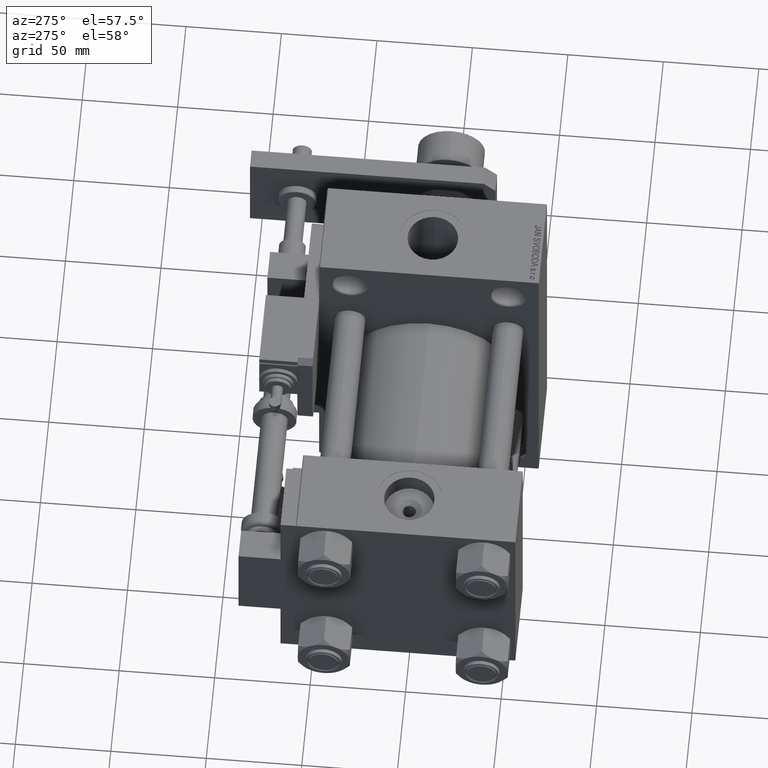
[diagram: clean part render]
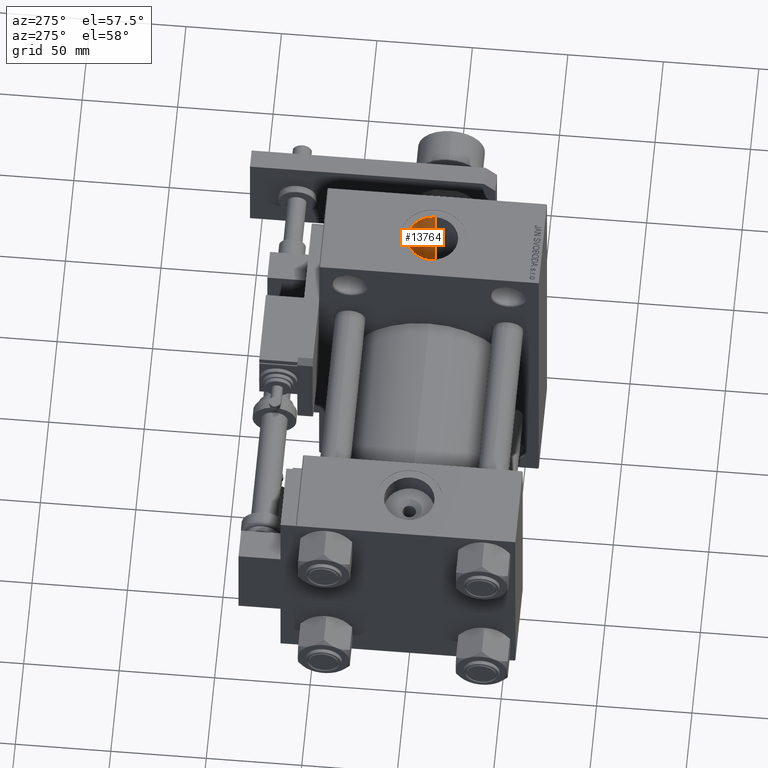
[diagram: same view with one face highlighted and labeled with its STEP entity id]
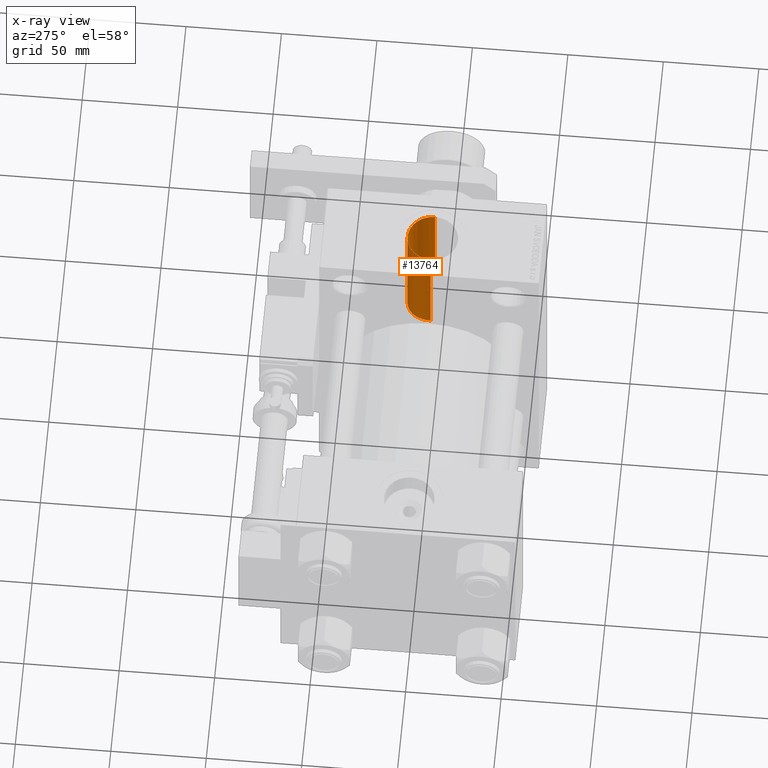
[diagram: x-ray of the same camera — body ghosted, the highlighted face saturated]
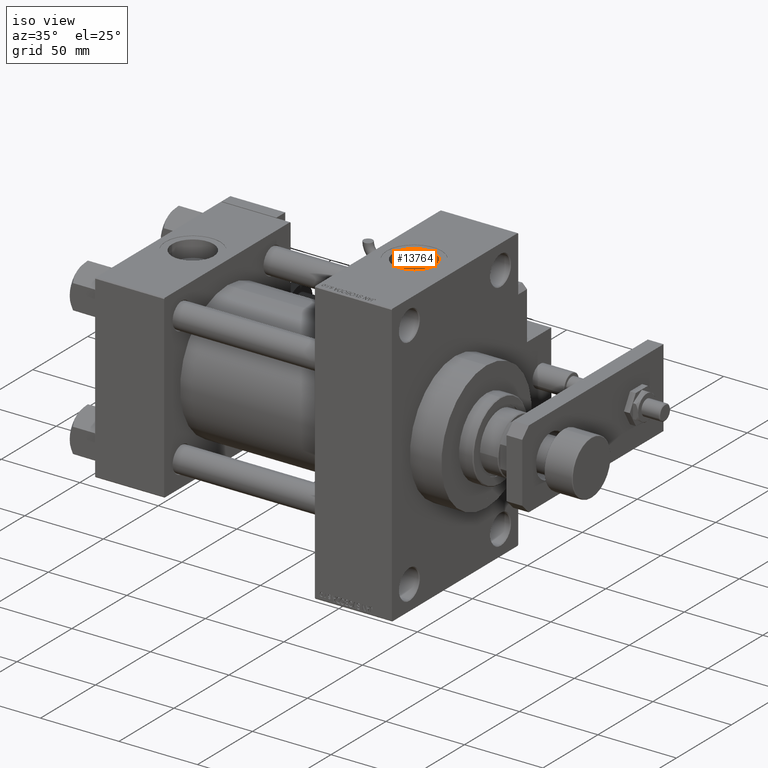
[diagram: same view with one face highlighted and labeled with its STEP entity id]
A machine part, auxiliary view. The second image highlights one B-rep face of the part: STEP entity #13764.
The next image is the same camera in x-ray: the body ghosted, the highlighted face saturated — about 2% of this face is hidden behind the body in this view.
A second angle (iso view) of the same face is appended — the face is thin or edge-on in the first view.
In plain terms, the highlighted cylindrical surface (edge-blend (fillet) strip) has radius 13.22 mm, axis along (0, 0, -1).
Its self-contained STEP definition (entity closure, byte-faithful):
#1471 = EDGE_LOOP ( 'NONE', ( #28839, #2738, #1728, #46291, #48702, #43926 ) ) ;
#1727 = AXIS2_PLACEMENT_3D ( 'NONE', #48613, #14843, #27892 ) ;
#1728 = ORIENTED_EDGE ( 'NONE', *, *, #11490, .T. ) ;
#2115 = CARTESIAN_POINT ( 'NONE',  ( 160.8119409645370865, 13.04724532387756319, 27.56854024737251052 ) ) ;
#2373 = CARTESIAN_POINT ( 'NONE',  ( 167.2060821151613368, 12.55531642788236191, 33.74093801992367503 ) ) ;
#2383 = CARTESIAN_POINT ( 'NONE',  ( 165.7400000000000091, 12.93293470176047144, 27.62225914004862659 ) ) ;
#2738 = ORIENTED_EDGE ( 'NONE', *, *, #46436, .F. ) ;
#2905 = CARTESIAN_POINT ( 'NONE',  ( 172.2544909056830420, 9.447833359205617398, 34.73924717178598343 ) ) ;
#6194 = CARTESIAN_POINT ( 'NONE',  ( 153.2493793498785806, 8.940352169284510708, 29.16250894268881666 ) ) ;
#6469 = CARTESIAN_POINT ( 'NONE',  ( 155.4271501200176431, 10.84687044312923732, 28.50745100355761963 ) ) ;
#6629 = DIRECTION ( 'NONE',  ( 0.000000000000000000, 0.000000000000000000, -1.000000000000000000 ) ) ;
#6990 = CARTESIAN_POINT ( 'NONE',  ( 150.3594029954051905, 3.901785162874682467, 30.25300952143917144 ) ) ;
#7332 = CARTESIAN_POINT ( 'NONE',  ( 162.9999999999999716, 0.000000000000000000, 112.7999999999999829 ) ) ;
#7863 = DIRECTION ( 'NONE',  ( 0.000000000000000000, 0.000000000000000000, -1.000000000000000000 ) ) ;
#8670 = CARTESIAN_POINT ( 'NONE',  ( 149.7799999999999727, 0.000000000000000000, 89.79999999999999716 ) ) ;
#9504 = EDGE_CURVE ( 'NONE', #32075, #38275, #29164, .T. ) ;
#10202 = EDGE_CURVE ( 'NONE', #32075, #25406, #49262, .T. ) ;
#10289 = CARTESIAN_POINT ( 'NONE',  ( 149.9192796940201617, 1.977766912824132861, 30.43984725220108345 ) ) ;
#10558 = CARTESIAN_POINT ( 'NONE',  ( 150.0034013176459098, 2.469744289827832784, 30.40367189608674181 ) ) ;
#11092 = CARTESIAN_POINT ( 'NONE',  ( 163.2851615108021690, 13.22613998524884416, 27.48307289366607620 ) ) ;
#11347 = CARTESIAN_POINT ( 'NONE',  ( 158.8969839307879113, 12.60537237624627771, 27.77446624569849121 ) ) ;
#11391 = VERTEX_POINT ( 'NONE', #48849 ) ;
#11490 = EDGE_CURVE ( 'NONE', #32405, #11391, #21833, .T. ) ;
#11608 = CARTESIAN_POINT ( 'NONE',  ( 166.4867003901545388, 12.77473711426744707, 33.65761171941716157 ) ) ;
#11765 = CARTESIAN_POINT ( 'NONE',  ( 165.7400000000000091, 12.93293470176047144, 33.59671412504502541 ) ) ;
#11880 = CARTESIAN_POINT ( 'NONE',  ( 175.8962416663181898, 3.003490287928881841, 35.88217189229080617 ) ) ;
#13013 = CIRCLE ( 'NONE', #1727, 13.22000000000000952 ) ;
#13764 = ADVANCED_FACE ( 'NONE', ( #31848 ), #28274, .F. ) ;
#14843 = DIRECTION ( 'NONE',  ( -0.000000000000000000, -0.000000000000000000, -1.000000000000000000 ) ) ;
#14896 = CARTESIAN_POINT ( 'NONE',  ( 152.9260598174466566, 8.574286465039131500, 29.27263374885119163 ) ) ;
#15155 = CARTESIAN_POINT ( 'NONE',  ( 173.0210832298416506, 8.630590761265711564, 34.95143037011762033 ) ) ;
#15163 = CARTESIAN_POINT ( 'NONE',  ( 161.8033419719259882, 13.17521242515512370, 27.50761348180682830 ) ) ;
#15422 = CARTESIAN_POINT ( 'NONE',  ( 151.5110741800254175, 6.613878971456279565, 29.78798023624083413 ) ) ;
#15674 = CARTESIAN_POINT ( 'NONE',  ( 173.7312113704627734, 7.757108125705374668, 35.15943117783077554 ) ) ;
#15950 = CARTESIAN_POINT ( 'NONE',  ( 175.3223465543049713, 4.803346231252589860, 35.67993160896548943 ) ) ;
#18711 = CARTESIAN_POINT ( 'NONE',  ( 156.2405905081905360, 11.37158902866330301, 28.30223178644139637 ) ) ;
#18963 = CARTESIAN_POINT ( 'NONE',  ( 170.5493998682712515, 10.87852352895258079, 34.31951962323489624 ) ) ;
#19306 = DIRECTION ( 'NONE',  ( 0.000000000000000000, 0.000000000000000000, -1.000000000000000000 ) ) ;
#21833 = LINE ( 'NONE', #31099, #35268 ) ;
#22774 = CARTESIAN_POINT ( 'NONE',  ( 150.8710626762528761, 5.282033915368382182, 30.04254330308662446 ) ) ;
#23053 = CARTESIAN_POINT ( 'NONE',  ( 157.9827127633824091, 12.27015841204418400, 27.92701712990831453 ) ) ;
#23565 = CARTESIAN_POINT ( 'NONE',  ( 176.2200000000000557, 0.3819698288429405619, 36.00000000000000711 ) ) ;
#24101 = CARTESIAN_POINT ( 'NONE',  ( 175.1796393711019846, 5.154167772853372576, 35.63079688237382214 ) ) ;
#24172 = DIRECTION ( 'NONE',  ( -1.000000000000000000, 0.000000000000000000, 0.000000000000000000 ) ) ;
#25406 = VERTEX_POINT ( 'NONE', #33815 ) ;
#26849 = VECTOR ( 'NONE', #6629, 1000.000000000000000 ) ;
#26877 = CARTESIAN_POINT ( 'NONE',  ( 150.2233236804503349, 3.430416358514376540, 30.31031417239466563 ) ) ;
#27659 = CARTESIAN_POINT ( 'NONE',  ( 176.1379817546421123, 1.518265865167180539, 35.96994912351960494 ) ) ;
#27668 = CARTESIAN_POINT ( 'NONE',  ( 149.8074965746004921, 0.9872482238805309063, 30.48805017778670390 ) ) ;
#27892 = DIRECTION ( 'NONE',  ( 1.000000000000000000, 0.000000000000000000, 0.000000000000000000 ) ) ;
#27931 = CARTESIAN_POINT ( 'NONE',  ( 171.9855853527146223, 9.703877399782257385, 34.66842035655219689 ) ) ;
#27940 = CARTESIAN_POINT ( 'NONE',  ( 160.3256342958763412, 12.95594869095346446, 27.61177267963250515 ) ) ;
#28203 = CARTESIAN_POINT ( 'NONE',  ( 174.1498648550291932, 7.141648424859584843, 35.29067191690104721 ) ) ;
#28274 = CYLINDRICAL_SURFACE ( 'NONE', #29288, 13.22000000000000952 ) ;
#28839 = ORIENTED_EDGE ( 'NONE', *, *, #43818, .F. ) ;
#29164 = B_SPLINE_CURVE_WITH_KNOTS ( 'NONE', 3,
 ( #45093, #11608, #2373, #36370, #44555, #18963, #44290, #27931, #2905, #39933, #15155, #15674, #28203, #32022, #53259, #24101, #15950, #52212, #11880, #40198, #27659, #39672, #23565, #40469 ),
 .UNSPECIFIED., .F., .F.,
 ( 4, 2, 2, 2, 2, 2, 2, 2, 2, 2, 2, 4 ),
 ( 0.000000000000000000, 0.002262540966026026484, 0.004525081932052052967, 0.006787622898078079017, 0.007918893381091121966, 0.009050163864104166650, 0.01131270483013031326, 0.01244397531314338744, 0.01357524579615645988, 0.01583778676218264292, 0.01696905724519573444, 0.01810032772820882249 ),
 .UNSPECIFIED. ) ;
#29288 = AXIS2_PLACEMENT_3D ( 'NONE', #7332, #19306, #24172 ) ;
#30973 = CARTESIAN_POINT ( 'NONE',  ( 164.7607663062245535, 13.11151955524790402, 27.53798861069346771 ) ) ;
#31099 = CARTESIAN_POINT ( 'NONE',  ( 149.7799999999999727, 0.000000000000000000, 112.7999999999999829 ) ) ;
#31239 = CARTESIAN_POINT ( 'NONE',  ( 154.2896176093950658, 9.956384615881511024, 28.83096279477900126 ) ) ;
#31781 = CARTESIAN_POINT ( 'NONE',  ( 149.7799999999999727, 3.735152335644797090E-15, 30.50000000000000000 ) ) ;
#31848 = FACE_OUTER_BOUND ( 'NONE', #1471, .T. ) ;
#32022 = CARTESIAN_POINT ( 'NONE',  ( 174.6983450057126674, 6.168928695871319867, 35.46904263421717474 ) ) ;
#32075 = VERTEX_POINT ( 'NONE', #11765 ) ;
#32405 = VERTEX_POINT ( 'NONE', #8670 ) ;
#33815 = CARTESIAN_POINT ( 'NONE',  ( 165.7400000000000091, 12.93293470176047144, 27.62225914004862659 ) ) ;
#35268 = VECTOR ( 'NONE', #51260, 1000.000000000000000 ) ;
#35323 = CARTESIAN_POINT ( 'NONE',  ( 162.2979727381281521, 13.21057355757993079, 27.49055875873990473 ) ) ;
#35531 = EDGE_CURVE ( 'NONE', #11391, #25406, #44644, .T. ) ;
#35593 = CARTESIAN_POINT ( 'NONE',  ( 149.7800000000000296, 0.4930897905089591249, 30.50000000000000000 ) ) ;
#35757 = LINE ( 'NONE', #43932, #26849 ) ;
#36370 = CARTESIAN_POINT ( 'NONE',  ( 168.5945103277782380, 12.00118958920802648, 33.94198458417640296 ) ) ;
#36709 = CARTESIAN_POINT ( 'NONE',  ( 165.7400000000000091, 12.93293470176047144, 112.7999999999999829 ) ) ;
#37823 = VECTOR ( 'NONE', #7863, 1000.000000000000000 ) ;
#38275 = VERTEX_POINT ( 'NONE', #41617 ) ;
#38487 = VERTEX_POINT ( 'NONE', #52790 ) ;
#39412 = CARTESIAN_POINT ( 'NONE',  ( 153.9320074090819048, 9.632030437268115364, 28.94142039359464746 ) ) ;
#39672 = CARTESIAN_POINT ( 'NONE',  ( 176.2033327349465992, 0.7640029534828026714, 35.99386990409605147 ) ) ;
#39681 = CARTESIAN_POINT ( 'NONE',  ( 165.2536187678447277, 13.03598049970485917, 27.57401237756085877 ) ) ;
#39933 = CARTESIAN_POINT ( 'NONE',  ( 172.7718099334105091, 8.911727539146802712, 34.88062444271562867 ) ) ;
#40198 = CARTESIAN_POINT ( 'NONE',  ( 176.0893087182807619, 1.892035420910300969, 35.95216273564660980 ) ) ;
#40469 = CARTESIAN_POINT ( 'NONE',  ( 176.2199999999999989, 4.408731805096607676E-15, 36.00000000000000000 ) ) ;
#41617 = CARTESIAN_POINT ( 'NONE',  ( 176.2199999999999989, 4.408731805096607676E-15, 36.00000000000000000 ) ) ;
#43818 = EDGE_CURVE ( 'NONE', #38487, #38275, #35757, .T. ) ;
#43926 = ORIENTED_EDGE ( 'NONE', *, *, #9504, .T. ) ;
#43932 = CARTESIAN_POINT ( 'NONE',  ( 176.2199999999999989, 1.618983068472802532E-15, 112.7999999999999829 ) ) ;
#44041 = CARTESIAN_POINT ( 'NONE',  ( 155.0371891369869672, 10.56380609296692796, 28.61398279029829084 ) ) ;
#44290 = CARTESIAN_POINT ( 'NONE',  ( 171.1482271659914431, 10.43671964436603794, 34.45770319535726145 ) ) ;
#44298 = CARTESIAN_POINT ( 'NONE',  ( 156.6661582615323596, 11.61426874580970470, 28.20310319464546112 ) ) ;
#44555 = CARTESIAN_POINT ( 'NONE',  ( 169.2649626807106813, 11.66558850424324767, 34.06003150599317308 ) ) ;
#44644 = B_SPLINE_CURVE_WITH_KNOTS ( 'NONE', 3,
 ( #31781, #35593, #27668, #10289, #10558, #26877, #6990, #48410, #22774, #15422, #52223, #14896, #6194, #39412, #31239, #44041, #6469, #18711, #44298, #23053, #11347, #27940, #2115, #15163, #35323, #11092, #52498, #30973, #39681, #2383 ),
 .UNSPECIFIED., .F., .F.,
 ( 4, 2, 2, 2, 2, 2, 2, 2, 2, 2, 2, 2, 2, 2, 4 ),
 ( 0.04185757538675118766, 0.04333653936425795744, 0.04481550334176472028, 0.04629446731927149006, 0.04777343129677825984, 0.05073135925179179245, 0.05221032322929854141, 0.05368928720680528344, 0.05516825118431202546, 0.05664721516181876748, 0.05960514311683218214, 0.06108410709433889640, 0.06256307107184559679, 0.06404203504935229718, 0.06552099902685901145 ),
 .UNSPECIFIED. ) ;
#45093 = CARTESIAN_POINT ( 'NONE',  ( 165.7400000000000091, 12.93293470176047144, 33.59671412504502541 ) ) ;
#46291 = ORIENTED_EDGE ( 'NONE', *, *, #35531, .T. ) ;
#46436 = EDGE_CURVE ( 'NONE', #32405, #38487, #13013, .T. ) ;
#48410 = CARTESIAN_POINT ( 'NONE',  ( 150.6830193899776873, 4.827070409900221293, 30.11922814116232061 ) ) ;
#48613 = CARTESIAN_POINT ( 'NONE',  ( 162.9999999999999716, 0.000000000000000000, 89.79999999999999716 ) ) ;
#48702 = ORIENTED_EDGE ( 'NONE', *, *, #10202, .F. ) ;
#48849 = CARTESIAN_POINT ( 'NONE',  ( 149.7799999999999727, 3.735152335644797090E-15, 30.50000000000000000 ) ) ;
#49262 = LINE ( 'NONE', #36709, #37823 ) ;
#51260 = DIRECTION ( 'NONE',  ( 0.000000000000000000, 0.000000000000000000, -1.000000000000000000 ) ) ;
#52212 = CARTESIAN_POINT ( 'NONE',  ( 175.7051556392587486, 3.731388303156857766, 35.81334052950150948 ) ) ;
#52223 = CARTESIAN_POINT ( 'NONE',  ( 152.0260244560768115, 7.434870375886666771, 29.59044782374041560 ) ) ;
#52498 = CARTESIAN_POINT ( 'NONE',  ( 163.7777193278498942, 13.20633922326215348, 27.49264203546940877 ) ) ;
#52790 = CARTESIAN_POINT ( 'NONE',  ( 176.2199999999999989, 1.618983068472802926E-15, 89.79999999999999716 ) ) ;
#53259 = CARTESIAN_POINT ( 'NONE',  ( 174.8678405391318336, 5.836387716606542320, 35.52542343625400179 ) ) ;